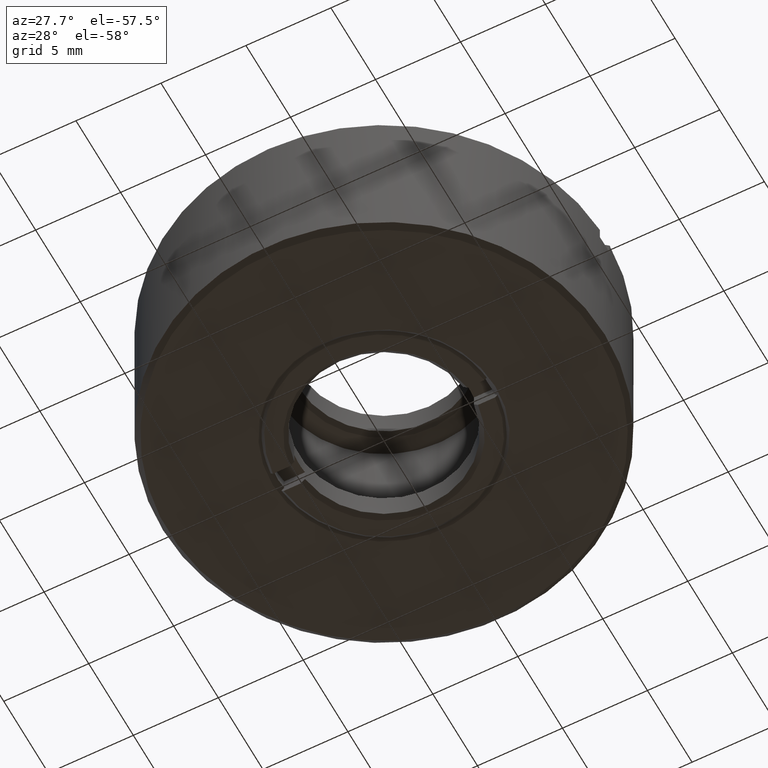
[diagram: clean part render]
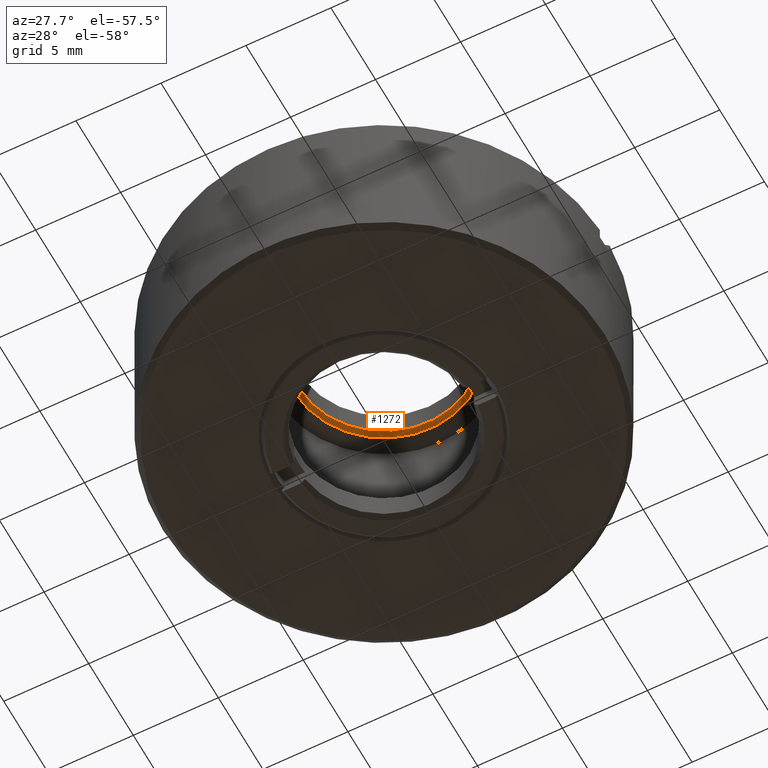
[diagram: same view with one face highlighted and labeled with its STEP entity id]
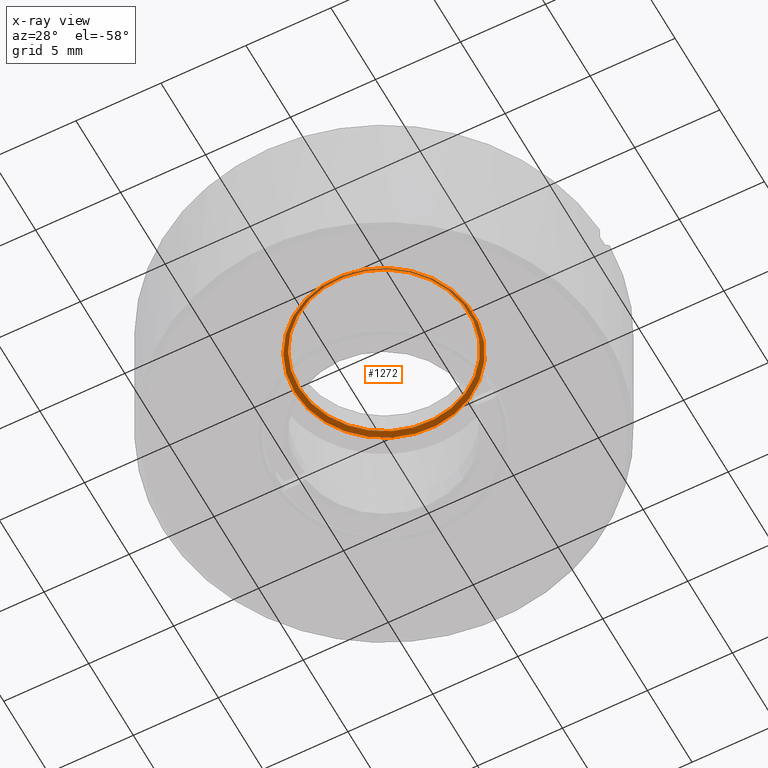
[diagram: x-ray of the same camera — body ghosted, the highlighted face saturated]
A machine part, auxiliary view. The second image highlights one B-rep face of the part: STEP entity #1272.
The next image is the same camera in x-ray: the body ghosted, the highlighted face saturated — about 49% of this face is hidden behind the body in this view.
In plain terms, the highlighted conical surface has half-angle 45 deg.
Its self-contained STEP definition (entity closure, byte-faithful):
#16 = ORIENTED_EDGE ( 'NONE', *, *, #593, .F. ) ;
#105 = AXIS2_PLACEMENT_3D ( 'NONE', #1218, #479, #973 ) ;
#225 = EDGE_LOOP ( 'NONE', ( #16 ) ) ;
#246 = DIRECTION ( 'NONE',  ( 0.000000000000000000, 0.000000000000000000, -1.000000000000000000 ) ) ;
#253 = CARTESIAN_POINT ( 'NONE',  ( 0.000000000000000000, 0.000000000000000000, 2.999999999990450306 ) ) ;
#262 = CIRCLE ( 'NONE', #1291, 5.249999999989540811 ) ;
#438 = EDGE_LOOP ( 'NONE', ( #998 ) ) ;
#479 = DIRECTION ( 'NONE',  ( -0.000000000000000000, -0.000000000000000000, -1.000000000000000000 ) ) ;
#486 = DIRECTION ( 'NONE',  ( 0.000000000000000000, 0.000000000000000000, -1.000000000000000000 ) ) ;
#593 = EDGE_CURVE ( 'NONE', #1053, #1053, #1537, .T. ) ;
#620 = FACE_BOUND ( 'NONE', #225, .T. ) ;
#741 = VERTEX_POINT ( 'NONE', #1491 ) ;
#846 = FACE_OUTER_BOUND ( 'NONE', #438, .T. ) ;
#973 = DIRECTION ( 'NONE',  ( -1.000000000000000000, 0.000000000000000000, 0.000000000000000000 ) ) ;
#988 = CONICAL_SURFACE ( 'NONE', #1403, 5.249999999989540811, 0.7853981633974482790 ) ;
#998 = ORIENTED_EDGE ( 'NONE', *, *, #1234, .T. ) ;
#1053 = VERTEX_POINT ( 'NONE', #1565 ) ;
#1218 = CARTESIAN_POINT ( 'NONE',  ( 0.000000000000000000, 0.000000000000000000, 3.249999999984538590 ) ) ;
#1219 = DIRECTION ( 'NONE',  ( -1.000000000000000000, 0.000000000000000000, 0.000000000000000000 ) ) ;
#1233 = DIRECTION ( 'NONE',  ( -1.000000000000000000, 0.000000000000000000, 0.000000000000000000 ) ) ;
#1234 = EDGE_CURVE ( 'NONE', #741, #741, #262, .T. ) ;
#1272 = ADVANCED_FACE ( 'NONE', ( #846, #620 ), #988, .F. ) ;
#1291 = AXIS2_PLACEMENT_3D ( 'NONE', #253, #486, #1219 ) ;
#1356 = CARTESIAN_POINT ( 'NONE',  ( 0.000000000000000000, 0.000000000000000000, 2.999999999990450306 ) ) ;
#1403 = AXIS2_PLACEMENT_3D ( 'NONE', #1356, #246, #1233 ) ;
#1491 = CARTESIAN_POINT ( 'NONE',  ( -5.249999999989540811, 0.000000000000000000, 2.999999999990450306 ) ) ;
#1537 = CIRCLE ( 'NONE', #105, 4.999999999995452526 ) ;
#1565 = CARTESIAN_POINT ( 'NONE',  ( -4.999999999995452526, 0.000000000000000000, 3.249999999984538590 ) ) ;